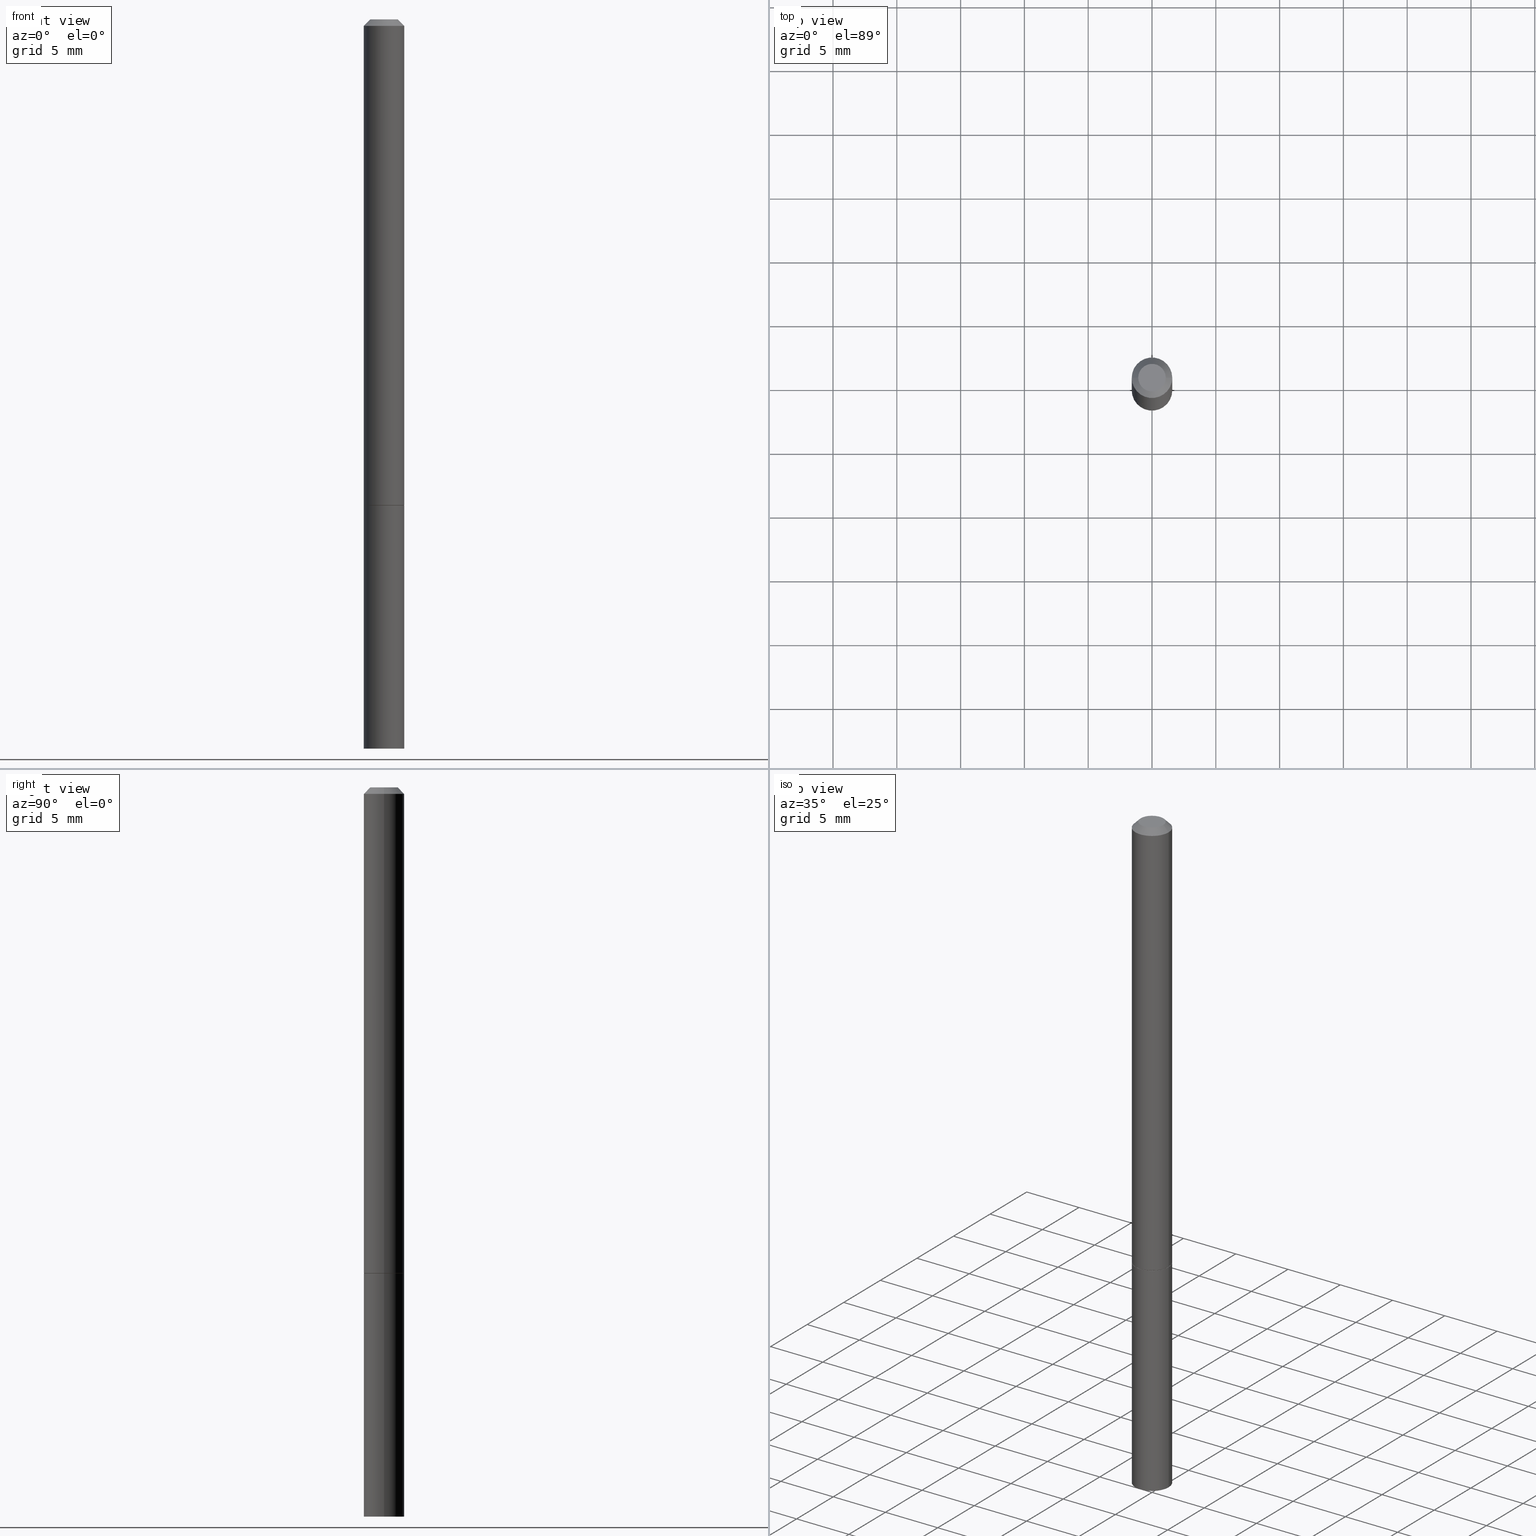
[diagram: canonical four-view strip — front | top / right | iso, engineering-drawing reading convention]
A machine part, canonical four-view strip (front | top / right | iso — engineering-drawing reading convention). The complete STEP part file that produces these views, byte-faithful:
ISO-10303-21;
HEADER;
FILE_DESCRIPTION (( 'STEP AP203' ),
    '1' );
FILE_NAME ('33141.STEP',
    '2023-03-21T20:41:01',
    ( '' ),
    ( '' ),
    'SwSTEP 2.0',
    'SolidWorks 2022',
    '' );
FILE_SCHEMA (( 'CONFIG_CONTROL_DESIGN' ));
ENDSEC;

DATA;
#1 = PLANE ( 'NONE',  #34 ) ;
#2 = AXIS2_PLACEMENT_3D ( 'NONE', #319, #113, #296 ) ;
#3 = DIRECTION ( 'NONE',  ( 2.438088387897960049E-29, -3.491481338843145188E-15, -1.000000000000000000 ) ) ;
#4 = AXIS2_PLACEMENT_3D ( 'NONE', #269, #3, #61 ) ;
#5 = FACE_OUTER_BOUND ( 'NONE', #291, .T. ) ;
#6 = CYLINDRICAL_SURFACE ( 'NONE', #165, 0.06250000000000001388 ) ;
#7 = DATE_AND_TIME ( #163, #388 ) ;
#8 = CARTESIAN_POINT ( 'NONE',  ( -0.06249999999999984734, 4.440892098500615315E-16, -3.074334431409308406E-30 ) ) ;
#9 = AXIS2_PLACEMENT_3D ( 'NONE', #195, #124, #311 ) ;
#10 = ADVANCED_FACE ( 'NONE', ( #292 ), #307, .F. ) ;
#11 = APPROVAL_STATUS ( 'not_yet_approved' ) ;
#12 = EDGE_CURVE ( 'NONE', #230, #87, #176, .T. ) ;
#13 = EDGE_LOOP ( 'NONE', ( #132, #105, #249 ) ) ;
#14 = APPROVAL_DATE_TIME ( #7, #338 ) ;
#15 = VERTEX_POINT ( 'NONE', #324 ) ;
#16 = AXIS2_PLACEMENT_3D ( 'NONE', #212, #240, #152 ) ;
#17 = COORDINATED_UNIVERSAL_TIME_OFFSET ( 5, 0, .BEHIND. ) ;
#18 = ORIENTED_EDGE ( 'NONE', *, *, #36, .F. ) ;
#19 = FACE_OUTER_BOUND ( 'NONE', #204, .T. ) ;
#20 = PRODUCT_DEFINITION ( 'UNKNOWN', '', #82, #211 ) ;
#21 = FACE_OUTER_BOUND ( 'NONE', #71, .T. ) ;
#22 = APPROVAL_STATUS ( 'not_yet_approved' ) ;
#23 = CARTESIAN_POINT ( 'NONE',  ( 3.668203209277706016E-29, -5.237222008264719754E-15, -1.500000000000000444 ) ) ;
#24 = ORIENTED_EDGE ( 'NONE', *, *, #273, .T. ) ;
#25 = EDGE_CURVE ( 'NONE', #377, #76, #119, .T. ) ;
#26 = ADVANCED_FACE ( 'NONE', ( #27 ), #28, .T. ) ;
#27 = FACE_OUTER_BOUND ( 'NONE', #192, .T. ) ;
#28 = CONICAL_SURFACE ( 'NONE', #245, 0.06249999999999974326, 0.7853981633974476129 ) ;
#29 = AXIS2_PLACEMENT_3D ( 'NONE', #384, #136, #145 ) ;
#30 = ORIENTED_EDGE ( 'NONE', *, *, #116, .F. ) ;
#31 = DIRECTION ( 'NONE',  ( 1.000000000000000000, -6.982962677686265922E-15, 4.870577812114112753E-29 ) ) ;
#32 = DIRECTION ( 'NONE',  ( -0.7071067811865469066, 2.468850131082251144E-15, -0.7071067811865479058 ) ) ;
#33 = CC_DESIGN_PERSON_AND_ORGANIZATION_ASSIGNMENT ( #248, #220, ( #82 ) ) ;
#34 = AXIS2_PLACEMENT_3D ( 'NONE', #328, #302, #363 ) ;
#35 = CARTESIAN_POINT ( 'NONE',  ( 3.665757740471520413E-29, -5.233730526925875958E-15, -1.499000000000000332 ) ) ;
#36 = EDGE_CURVE ( 'NONE', #85, #377, #234, .T. ) ;
#37 = FACE_OUTER_BOUND ( 'NONE', #278, .T. ) ;
#38 = COORDINATED_UNIVERSAL_TIME_OFFSET ( 5, 0, .BEHIND. ) ;
#39 = CLOSED_SHELL ( 'NONE', ( #366, #10, #370, #327, #202 ) ) ;
#40 = AXIS2_PLACEMENT_3D ( 'NONE', #303, #41, #159 ) ;
#41 = DIRECTION ( 'NONE',  ( -2.445468806185136597E-29, 3.491481338843145583E-15, 1.000000000000000000 ) ) ;
#42 = EDGE_LOOP ( 'NONE', ( #379, #254, #196 ) ) ;
#43 = CALENDAR_DATE ( 2023, 21, 3 ) ;
#44 = LINE ( 'NONE', #161, #149 ) ;
#45 = VERTEX_POINT ( 'NONE', #173 ) ;
#46 = DIRECTION ( 'NONE',  ( 0.000000000000000000, 0.000000000000000000, 1.000000000000000000 ) ) ;
#47 = ORIENTED_EDGE ( 'NONE', *, *, #242, .F. ) ;
#48 = AXIS2_PLACEMENT_3D ( 'NONE', #23, #389, #207 ) ;
#49 = ORIENTED_EDGE ( 'NONE', *, *, #25, .F. ) ;
#50 = CARTESIAN_POINT ( 'NONE',  ( -0.06249999999999974326, 3.666055405785266456E-16, -0.02000000000000007674 ) ) ;
#51 = MECHANICAL_CONTEXT ( 'NONE', #241, 'mechanical' ) ;
#52 = ORIENTED_EDGE ( 'NONE', *, *, #314, .T. ) ;
#53 = VECTOR ( 'NONE', #236, 39.37007874015748143 ) ;
#54 = DIRECTION ( 'NONE',  ( -0.7071067811864026886, 7.493145998869830357E-15, 0.7071067811866923458 ) ) ;
#55 = PLANE ( 'NONE',  #246 ) ;
#56 = DIRECTION ( 'NONE',  ( -2.445468806185136877E-29, 3.491481338843145188E-15, 1.000000000000000000 ) ) ;
#57 = AXIS2_PLACEMENT_3D ( 'NONE', #59, #120, #140 ) ;
#58 = CARTESIAN_POINT ( 'NONE',  ( 0.06249999999999992367, -8.284614137257799171E-15, -2.250000000000000444 ) ) ;
#59 = CARTESIAN_POINT ( 'NONE',  ( 3.668203209277706577E-29, -5.237222008264720543E-15, -1.500000000000000666 ) ) ;
#60 = CARTESIAN_POINT ( 'NONE',  ( -0.06150000000000001299, -4.794939771424035744E-15, -1.500000000000000666 ) ) ;
#61 = DIRECTION ( 'NONE',  ( -1.000000000000000000, 6.982962677686265922E-15, -4.876176775795935793E-29 ) ) ;
#62 = ADVANCED_FACE ( 'NONE', ( #21 ), #55, .F. ) ;
#63 = CARTESIAN_POINT ( 'NONE',  ( 0.06250000000000001388, -4.364351673553918173E-16, 3.047610484872460571E-30 ) ) ;
#64 = CIRCLE ( 'NONE', #180, 0.04249999999999975325 ) ;
#65 = DIRECTION ( 'NONE',  ( -2.445468806185136597E-29, 3.491481338843145583E-15, 1.000000000000000000 ) ) ;
#66 = APPROVAL_DATE_TIME ( #306, #263 ) ;
#67 = CARTESIAN_POINT ( 'NONE',  ( 3.668203209277706577E-29, -5.237222008264720543E-15, -1.500000000000000666 ) ) ;
#68 = COORDINATED_UNIVERSAL_TIME_OFFSET ( 5, 0, .BEHIND. ) ;
#69 = ORIENTED_EDGE ( 'NONE', *, *, #116, .T. ) ;
#70 = EDGE_CURVE ( 'NONE', #15, #235, #258, .T. ) ;
#71 = EDGE_LOOP ( 'NONE', ( #102, #222 ) ) ;
#72 = AXIS2_PLACEMENT_3D ( 'NONE', #35, #237, #208 ) ;
#73 = DIRECTION ( 'NONE',  ( -0.9986295347545742773, 6.790662755453662155E-15, -0.05233595624293820026 ) ) ;
#74 = ORIENTED_EDGE ( 'NONE', *, *, #86, .F. ) ;
#75 = DIRECTION ( 'NONE',  ( 1.000000000000000000, 0.000000000000000000, 0.000000000000000000 ) ) ;
#76 = VERTEX_POINT ( 'NONE', #50 ) ;
#77 = ADVANCED_FACE ( 'NONE', ( #326 ), #316, .T. ) ;
#78 = ORIENTED_EDGE ( 'NONE', *, *, #356, .F. ) ;
#79 = CC_DESIGN_DATE_AND_TIME_ASSIGNMENT ( #129, #304, ( #20 ) ) ;
#80 = AXIS2_PLACEMENT_3D ( 'NONE', #336, #96, #179 ) ;
#81 = PRODUCT ( '33141', '33141', '', ( #51 ) ) ;
#82 = PRODUCT_DEFINITION_FORMATION_WITH_SPECIFIED_SOURCE ( 'ANY', '', #81, .NOT_KNOWN. ) ;
#83 = DIRECTION ( 'NONE',  ( 2.445468806185136597E-29, -3.491481338843145583E-15, -1.000000000000000000 ) ) ;
#84 = MANIFOLD_SOLID_BREP ( 'Body-Move/Copy2[2]', #270 ) ;
#85 = VERTEX_POINT ( 'NONE', #354 ) ;
#86 = EDGE_CURVE ( 'NONE', #235, #15, #121, .T. ) ;
#87 = VERTEX_POINT ( 'NONE', #288 ) ;
#88 = VECTOR ( 'NONE', #91, 39.37007874015748854 ) ;
#89 = CIRCLE ( 'NONE', #177, 0.04249999999999975325 ) ;
#90 = LOCAL_TIME ( 16, 41, 1.000000000000000000, #17 ) ;
#91 = DIRECTION ( 'NONE',  ( 0.7071067811865469066, -7.319954787623252890E-15, -0.7071067811865479058 ) ) ;
#92 = CARTESIAN_POINT ( 'NONE',  ( -0.06150000000000001299, -4.800238225772258935E-15, -1.500000000000000666 ) ) ;
#93 = CARTESIAN_POINT ( 'NONE',  ( 0.000000000000000000, 0.000000000000000000, 0.000000000000000000 ) ) ;
#94 = AXIS2_PLACEMENT_3D ( 'NONE', #228, #133, #198 ) ;
#95 = DIRECTION ( 'NONE',  ( -2.445468806185136597E-29, 3.491481338843145583E-15, 1.000000000000000000 ) ) ;
#96 = DIRECTION ( 'NONE',  ( -2.445468806185136597E-29, 3.491481338843145583E-15, 1.000000000000000000 ) ) ;
#97 = CARTESIAN_POINT ( 'NONE',  ( -2.788544184640943410E-17, -7.844396713436020961E-15, -2.246724513794810640 ) ) ;
#98 = DIRECTION ( 'NONE',  ( 0.7071067811864026886, -2.468850131080739687E-15, 0.7071067811866923458 ) ) ;
#99 = VECTOR ( 'NONE', #56, 39.37007874015748143 ) ;
#100 = FACE_OUTER_BOUND ( 'NONE', #200, .T. ) ;
#101 = VECTOR ( 'NONE', #73, 39.37007874015748854 ) ;
#102 = ORIENTED_EDGE ( 'NONE', *, *, #261, .F. ) ;
#103 = ORIENTED_EDGE ( 'NONE', *, *, #298, .F. ) ;
#104 = DATE_TIME_ROLE ( 'classification_date' ) ;
#105 = ORIENTED_EDGE ( 'NONE', *, *, #148, .T. ) ;
#106 =( NAMED_UNIT ( * ) PLANE_ANGLE_UNIT ( ) SI_UNIT ( $, .RADIAN. ) );
#107 = ORIENTED_EDGE ( 'NONE', *, *, #365, .T. ) ;
#108 = AXIS2_PLACEMENT_3D ( 'NONE', #282, #231, #313 ) ;
#109 =( CONVERSION_BASED_UNIT ( 'INCH', #350 ) LENGTH_UNIT ( ) NAMED_UNIT ( #213 ) );
#110 = DIRECTION ( 'NONE',  ( 1.000000000000000000, -6.982962677686265922E-15, 4.870577812114112753E-29 ) ) ;
#111 = DIRECTION ( 'NONE',  ( 2.445468806185136597E-29, -3.491481338843145583E-15, -1.000000000000000000 ) ) ;
#112 = APPROVAL ( #22, 'UNSPECIFIED' ) ;
#113 = DIRECTION ( 'NONE',  ( -2.445468806185136597E-29, 3.491481338843145583E-15, 1.000000000000000000 ) ) ;
#114 =( GEOMETRIC_REPRESENTATION_CONTEXT ( 3 ) GLOBAL_UNCERTAINTY_ASSIGNED_CONTEXT ( ( #294 ) ) GLOBAL_UNIT_ASSIGNED_CONTEXT ( ( #109, #106, #203 ) ) REPRESENTATION_CONTEXT ( 'NONE', 'WORKASPACE' ) );
#115 = ORIENTED_EDGE ( 'NONE', *, *, #216, .F. ) ;
#116 = EDGE_CURVE ( 'NONE', #166, #377, #139, .T. ) ;
#117 = CARTESIAN_POINT ( 'NONE',  ( 0.06249999999999984734, -4.364351673553905847E-16, 3.047610484872452514E-30 ) ) ;
#118 = CARTESIAN_POINT ( 'NONE',  ( 0.06150000000000001299, -5.666674212942425410E-15, -1.500000000000000666 ) ) ;
#119 = CIRCLE ( 'NONE', #2, 0.06249999999999974326 ) ;
#120 = DIRECTION ( 'NONE',  ( -2.445468806185136597E-29, 3.491481338843145583E-15, 1.000000000000000000 ) ) ;
#121 = CIRCLE ( 'NONE', #308, 0.06250000000000001388 ) ;
#122 = EDGE_CURVE ( 'NONE', #85, #323, #64, .T. ) ;
#123 = DIRECTION ( 'NONE',  ( -2.445468806185136877E-29, 3.491481338843145188E-15, 1.000000000000000000 ) ) ;
#124 = DIRECTION ( 'NONE',  ( -2.445468806185136597E-29, 3.491481338843145583E-15, 1.000000000000000000 ) ) ;
#125 = PERSON_AND_ORGANIZATION ( #283, #209 ) ;
#126 = AXIS2_PLACEMENT_3D ( 'NONE', #359, #361, #210 ) ;
#127 = CC_DESIGN_SECURITY_CLASSIFICATION ( #191, ( #82 ) ) ;
#128 = VERTEX_POINT ( 'NONE', #232 ) ;
#129 = DATE_AND_TIME ( #43, #199 ) ;
#130 = AXIS2_PLACEMENT_3D ( 'NONE', #333, #65, #244 ) ;
#131 = ORIENTED_EDGE ( 'NONE', *, *, #353, .T. ) ;
#132 = ORIENTED_EDGE ( 'NONE', *, *, #345, .F. ) ;
#133 = DIRECTION ( 'NONE',  ( -2.445468806185136597E-29, 3.491481338843145583E-15, 1.000000000000000000 ) ) ;
#134 = EDGE_LOOP ( 'NONE', ( #318, #348, #115, #47 ) ) ;
#135 = CYLINDRICAL_SURFACE ( 'NONE', #94, 0.06249999999999984734 ) ;
#136 = DIRECTION ( 'NONE',  ( 2.445468806185136597E-29, -3.491481338843145583E-15, -1.000000000000000000 ) ) ;
#137 = VECTOR ( 'NONE', #274, 39.37007874015748854 ) ;
#138 = FACE_OUTER_BOUND ( 'NONE', #352, .T. ) ;
#139 = LINE ( 'NONE', #117, #99 ) ;
#140 = DIRECTION ( 'NONE',  ( 1.000000000000000000, -6.982962677686260400E-15, 0.000000000000000000 ) ) ;
#141 = ORIENTED_EDGE ( 'NONE', *, *, #216, .T. ) ;
#142 = DIRECTION ( 'NONE',  ( -2.438088387897960049E-29, 3.491481338843145188E-15, 1.000000000000000000 ) ) ;
#143 = CIRCLE ( 'NONE', #9, 0.06249999999999995143 ) ;
#144 = CC_DESIGN_PERSON_AND_ORGANIZATION_ASSIGNMENT ( #340, #337, ( #82 ) ) ;
#145 = DIRECTION ( 'NONE',  ( -1.000000000000000000, 6.982962677686265922E-15, 0.000000000000000000 ) ) ;
#146 = CARTESIAN_POINT ( 'NONE',  ( -0.06250000000000001388, -6.102438300480836091E-15, -1.500000000000000444 ) ) ;
#147 = DIRECTION ( 'NONE',  ( -2.445468806185136597E-29, 3.491481338843145583E-15, 1.000000000000000000 ) ) ;
#148 = EDGE_CURVE ( 'NONE', #128, #227, #178, .T. ) ;
#149 = VECTOR ( 'NONE', #279, 39.37007874015748143 ) ;
#150 = DIRECTION ( 'NONE',  ( 1.000000000000000000, -6.982962677686260400E-15, 0.000000000000000000 ) ) ;
#151 = ADVANCED_BREP_SHAPE_REPRESENTATION ( '33141', ( #217, #84, #387 ), #114 ) ;
#152 = DIRECTION ( 'NONE',  ( 1.000000000000000000, -6.982962677686261189E-15, 0.000000000000000000 ) ) ;
#153 = DIRECTION ( 'NONE',  ( -2.445468806185136597E-29, 3.491481338843145583E-15, 1.000000000000000000 ) ) ;
#154 = COORDINATED_UNIVERSAL_TIME_OFFSET ( 5, 0, .BEHIND. ) ;
#155 = APPLICATION_CONTEXT ( 'configuration controlled 3d designs of mechanical parts and assemblies' ) ;
#156 = PLANE ( 'NONE',  #4 ) ;
#157 = SECURITY_CLASSIFICATION_LEVEL ( 'unclassified' ) ;
#158 = ADVANCED_FACE ( 'NONE', ( #215 ), #297, .T. ) ;
#159 = DIRECTION ( 'NONE',  ( 1.000000000000000000, -6.982962677686261189E-15, 0.000000000000000000 ) ) ;
#160 = PERSON_AND_ORGANIZATION_ROLE ( 'classification_officer' ) ;
#161 = CARTESIAN_POINT ( 'NONE',  ( -0.06250000000000001388, 4.440892098500627148E-16, -3.074334431409317165E-30 ) ) ;
#162 = ORIENTED_EDGE ( 'NONE', *, *, #12, .F. ) ;
#163 = CALENDAR_DATE ( 2023, 21, 3 ) ;
#164 = FACE_OUTER_BOUND ( 'NONE', #42, .T. ) ;
#165 = AXIS2_PLACEMENT_3D ( 'NONE', #190, #153, #251 ) ;
#166 = VERTEX_POINT ( 'NONE', #329 ) ;
#167 = ORIENTED_EDGE ( 'NONE', *, *, #122, .T. ) ;
#168 = PERSON_AND_ORGANIZATION ( #283, #209 ) ;
#169 = DIRECTION ( 'NONE',  ( 1.000000000000000000, -6.982962677686261189E-15, 0.000000000000000000 ) ) ;
#170 = DATE_AND_TIME ( #381, #265 ) ;
#171 = DIRECTION ( 'NONE',  ( -1.000000000000000000, 6.982962677686265922E-15, 0.000000000000000000 ) ) ;
#172 = CIRCLE ( 'NONE', #16, 0.06250000000000001388 ) ;
#173 = CARTESIAN_POINT ( 'NONE',  ( 0.06150000000000001299, -5.666674212942425410E-15, -1.500000000000000666 ) ) ;
#174 = EDGE_LOOP ( 'NONE', ( #162, #52, #201, #312 ) ) ;
#175 = EDGE_CURVE ( 'NONE', #227, #262, #172, .T. ) ;
#176 = LINE ( 'NONE', #92, #289 ) ;
#177 = AXIS2_PLACEMENT_3D ( 'NONE', #331, #147, #31 ) ;
#178 = LINE ( 'NONE', #362, #137 ) ;
#179 = DIRECTION ( 'NONE',  ( 1.000000000000000000, -6.982962677686260400E-15, 0.000000000000000000 ) ) ;
#180 = AXIS2_PLACEMENT_3D ( 'NONE', #351, #382, #110 ) ;
#181 = APPROVAL_PERSON_ORGANIZATION ( #125, #263, #335 ) ;
#182 = SHAPE_DEFINITION_REPRESENTATION ( #339, #151 ) ;
#183 = CARTESIAN_POINT ( 'NONE',  ( -0.06249999999999992367, -7.419397845041688357E-15, -2.250000000000000444 ) ) ;
#184 = EDGE_CURVE ( 'NONE', #323, #85, #89, .T. ) ;
#185 = ADVANCED_FACE ( 'NONE', ( #5 ), #239, .T. ) ;
#186 = CALENDAR_DATE ( 2023, 21, 3 ) ;
#187 = PERSON_AND_ORGANIZATION_ROLE ( 'creator' ) ;
#188 = AXIS2_PLACEMENT_3D ( 'NONE', #233, #83, #206 ) ;
#189 = AXIS2_PLACEMENT_3D ( 'NONE', #197, #225, #373 ) ;
#190 = CARTESIAN_POINT ( 'NONE',  ( 0.000000000000000000, 0.000000000000000000, 0.000000000000000000 ) ) ;
#191 = SECURITY_CLASSIFICATION ( '', '', #157 ) ;
#192 = EDGE_LOOP ( 'NONE', ( #18, #321, #24, #107 ) ) ;
#193 = PERSON_AND_ORGANIZATION ( #283, #209 ) ;
#194 = EDGE_CURVE ( 'NONE', #227, #15, #214, .T. ) ;
#195 = CARTESIAN_POINT ( 'NONE',  ( 3.665757740471520413E-29, -5.233730526925875958E-15, -1.499000000000000332 ) ) ;
#196 = ORIENTED_EDGE ( 'NONE', *, *, #175, .F. ) ;
#197 = CARTESIAN_POINT ( 'NONE',  ( 0.000000000000000000, 0.000000000000000000, 0.000000000000000000 ) ) ;
#198 = DIRECTION ( 'NONE',  ( 1.000000000000000000, -6.982962677686266711E-15, 4.876176775795935793E-29 ) ) ;
#199 = LOCAL_TIME ( 16, 41, 1.000000000000000000, #38 ) ;
#200 = EDGE_LOOP ( 'NONE', ( #78, #205, #357, #74 ) ) ;
#201 = ORIENTED_EDGE ( 'NONE', *, *, #242, .T. ) ;
#202 = ADVANCED_FACE ( 'NONE', ( #358 ), #1, .F. ) ;
#203 =( NAMED_UNIT ( * ) SI_UNIT ( $, .STERADIAN. ) SOLID_ANGLE_UNIT ( ) );
#204 = EDGE_LOOP ( 'NONE', ( #226, #286, #390, #347 ) ) ;
#205 = ORIENTED_EDGE ( 'NONE', *, *, #330, .T. ) ;
#206 = DIRECTION ( 'NONE',  ( -1.000000000000000000, 6.982962677686266711E-15, 0.000000000000000000 ) ) ;
#207 = DIRECTION ( 'NONE',  ( 1.000000000000000000, -6.982962677686261189E-15, 0.000000000000000000 ) ) ;
#208 = DIRECTION ( 'NONE',  ( 1.000000000000000000, -6.982962677686268288E-15, 0.000000000000000000 ) ) ;
#209 = ORGANIZATION ( 'UNSPECIFIED', 'UNSPECIFIED', '' ) ;
#210 = DIRECTION ( 'NONE',  ( 1.000000000000000000, -6.982962677686260400E-15, 0.000000000000000000 ) ) ;
#211 = DESIGN_CONTEXT ( 'detailed design', #155, 'design' ) ;
#212 = CARTESIAN_POINT ( 'NONE',  ( 5.502304813916558464E-29, -7.855833012397078448E-15, -2.250000000000000444 ) ) ;
#213 = DIMENSIONAL_EXPONENTS ( 1.000000000000000000, 0.000000000000000000, 0.000000000000000000, 0.000000000000000000, 0.000000000000000000, 0.000000000000000000, 0.000000000000000000 ) ;
#214 = LINE ( 'NONE', #63, #238 ) ;
#215 = FACE_OUTER_BOUND ( 'NONE', #134, .T. ) ;
#216 = EDGE_CURVE ( 'NONE', #166, #87, #380, .T. ) ;
#217 = MANIFOLD_SOLID_BREP ( 'Body-Move/Copy2[1]', #39 ) ;
#218 = APPROVAL_STATUS ( 'not_yet_approved' ) ;
#219 = ORIENTED_EDGE ( 'NONE', *, *, #365, .F. ) ;
#220 = PERSON_AND_ORGANIZATION_ROLE ( 'design_supplier' ) ;
#221 = CONICAL_SURFACE ( 'NONE', #126, 0.06150000000000001299, 0.7853981633972434429 ) ;
#222 = ORIENTED_EDGE ( 'NONE', *, *, #314, .F. ) ;
#223 = CALENDAR_DATE ( 2023, 21, 3 ) ;
#224 = PRODUCT_RELATED_PRODUCT_CATEGORY ( 'detail', '', ( #81 ) ) ;
#225 = DIRECTION ( 'NONE',  ( -2.445468806185136597E-29, 3.491481338843145583E-15, 1.000000000000000000 ) ) ;
#226 = ORIENTED_EDGE ( 'NONE', *, *, #175, .T. ) ;
#227 = VERTEX_POINT ( 'NONE', #58 ) ;
#228 = CARTESIAN_POINT ( 'NONE',  ( 0.000000000000000000, 0.000000000000000000, 0.000000000000000000 ) ) ;
#229 = CONICAL_SURFACE ( 'NONE', #108, 751.2258538476485228, 1.518436449235072372 ) ;
#230 = VERTEX_POINT ( 'NONE', #60 ) ;
#231 = DIRECTION ( 'NONE',  ( 2.445468806185136597E-29, -3.491481338843145583E-15, -1.000000000000000000 ) ) ;
#232 = CARTESIAN_POINT ( 'NONE',  ( 5.474822414610211203E-29, -7.872282155282485375E-15, -2.246724513794810640 ) ) ;
#233 = CARTESIAN_POINT ( 'NONE',  ( 1.017725941706844260E-27, -1.453042919434811394E-13, -41.61680325395229119 ) ) ;
#234 = LINE ( 'NONE', #355, #88 ) ;
#235 = VERTEX_POINT ( 'NONE', #146 ) ;
#236 = DIRECTION ( 'NONE',  ( -2.445468806185136877E-29, 3.491481338843145188E-15, 1.000000000000000000 ) ) ;
#237 = DIRECTION ( 'NONE',  ( -2.445468806185136597E-29, 3.491481338843145583E-15, 1.000000000000000000 ) ) ;
#238 = VECTOR ( 'NONE', #123, 39.37007874015748143 ) ;
#239 = CYLINDRICAL_SURFACE ( 'NONE', #360, 0.06249999999999984734 ) ;
#240 = DIRECTION ( 'NONE',  ( -2.445468806185136597E-29, 3.491481338843145583E-15, 1.000000000000000000 ) ) ;
#241 = APPLICATION_CONTEXT ( 'configuration controlled 3d designs of mechanical parts and assemblies' ) ;
#242 = EDGE_CURVE ( 'NONE', #45, #166, #268, .T. ) ;
#243 = FACE_OUTER_BOUND ( 'NONE', #174, .T. ) ;
#244 = DIRECTION ( 'NONE',  ( 1.000000000000000000, -6.982962677686265922E-15, 0.000000000000000000 ) ) ;
#245 = AXIS2_PLACEMENT_3D ( 'NONE', #385, #111, #171 ) ;
#246 = AXIS2_PLACEMENT_3D ( 'NONE', #295, #142, #264 ) ;
#247 = APPROVAL_PERSON_ORGANIZATION ( #193, #338, #372 ) ;
#248 = PERSON_AND_ORGANIZATION ( #283, #209 ) ;
#249 = ORIENTED_EDGE ( 'NONE', *, *, #330, .F. ) ;
#250 = CC_DESIGN_APPROVAL ( #263, ( #191 ) ) ;
#251 = DIRECTION ( 'NONE',  ( 1.000000000000000000, -6.982962677686267499E-15, 4.876176775795935793E-29 ) ) ;
#252 = ORIENTED_EDGE ( 'NONE', *, *, #25, .T. ) ;
#253 = CARTESIAN_POINT ( 'NONE',  ( 0.06249999999999974326, -4.986107516375821473E-16, -0.02000000000000007674 ) ) ;
#254 = ORIENTED_EDGE ( 'NONE', *, *, #345, .T. ) ;
#255 = ADVANCED_FACE ( 'NONE', ( #243 ), #221, .T. ) ;
#256 =( LENGTH_UNIT ( ) NAMED_UNIT ( * ) SI_UNIT ( $, .METRE. ) );
#257 = COORDINATED_UNIVERSAL_TIME_OFFSET ( 5, 0, .BEHIND. ) ;
#258 = CIRCLE ( 'NONE', #48, 0.06250000000000001388 ) ;
#259 = DIRECTION ( 'NONE',  ( -2.445468806185136597E-29, 3.491481338843145583E-15, 1.000000000000000000 ) ) ;
#260 = ORIENTED_EDGE ( 'NONE', *, *, #184, .T. ) ;
#261 = EDGE_CURVE ( 'NONE', #45, #230, #301, .T. ) ;
#262 = VERTEX_POINT ( 'NONE', #183 ) ;
#263 = APPROVAL ( #218, 'UNSPECIFIED' ) ;
#264 = DIRECTION ( 'NONE',  ( 1.000000000000000000, -6.982962677686265922E-15, 4.876176775795935793E-29 ) ) ;
#265 = LOCAL_TIME ( 16, 41, 1.000000000000000000, #257 ) ;
#266 = CARTESIAN_POINT ( 'NONE',  ( 3.668203209277706016E-29, -5.237222008264719754E-15, -1.500000000000000444 ) ) ;
#267 = CC_DESIGN_PERSON_AND_ORGANIZATION_ASSIGNMENT ( #310, #160, ( #191 ) ) ;
#268 = LINE ( 'NONE', #118, #342 ) ;
#269 = CARTESIAN_POINT ( 'NONE',  ( 2.967759138016645800E-16, 0.04249999999999975325, -1.761332880864854825E-16 ) ) ;
#270 = CLOSED_SHELL ( 'NONE', ( #158, #386, #77, #26, #185, #255, #62, #284 ) ) ;
#271 = CC_DESIGN_APPROVAL ( #338, ( #82 ) ) ;
#272 = DIRECTION ( 'NONE',  ( -2.445468806185136597E-29, 3.491481338843145583E-15, 1.000000000000000000 ) ) ;
#273 = EDGE_CURVE ( 'NONE', #323, #76, #305, .T. ) ;
#274 = DIRECTION ( 'NONE',  ( 0.9986295347545742773, -7.033825938272001856E-15, -0.05233595624293820026 ) ) ;
#275 = LINE ( 'NONE', #8, #53 ) ;
#276 = AXIS2_PLACEMENT_3D ( 'NONE', #67, #95, #150 ) ;
#277 = LINE ( 'NONE', #97, #101 ) ;
#278 = EDGE_LOOP ( 'NONE', ( #260, #167 ) ) ;
#279 = DIRECTION ( 'NONE',  ( -2.445468806185136877E-29, 3.491481338843145188E-15, 1.000000000000000000 ) ) ;
#280 = EDGE_LOOP ( 'NONE', ( #343, #315, #252, #309 ) ) ;
#281 = CIRCLE ( 'NONE', #40, 0.06250000000000001388 ) ;
#282 = CARTESIAN_POINT ( 'NONE',  ( 1.017725941706844260E-27, -1.453042919434811394E-13, -41.61680325395229119 ) ) ;
#283 = PERSON ( 'UNSPECIFIED', 'UNSPECIFIED', 'UNSPECIFIED', ('UNSPECIFIED'), ('UNSPECIFIED'), ('UNSPECIFIED') ) ;
#284 = ADVANCED_FACE ( 'NONE', ( #37 ), #156, .F. ) ;
#285 = APPLICATION_PROTOCOL_DEFINITION ( 'international standard', 'config_control_design', 1994, #155 ) ;
#286 = ORIENTED_EDGE ( 'NONE', *, *, #356, .T. ) ;
#287 = PERSON_AND_ORGANIZATION_ROLE ( 'design_owner' ) ;
#288 = CARTESIAN_POINT ( 'NONE',  ( -0.06249999999999993755, -2.207690867001303462E-15, -1.499000000000000332 ) ) ;
#289 = VECTOR ( 'NONE', #54, 39.37007874015748143 ) ;
#290 = APPROVAL_DATE_TIME ( #170, #112 ) ;
#291 = EDGE_LOOP ( 'NONE', ( #103, #131, #69, #219 ) ) ;
#292 = FACE_OUTER_BOUND ( 'NONE', #13, .T. ) ;
#293 = CC_DESIGN_DATE_AND_TIME_ASSIGNMENT ( #344, #104, ( #191 ) ) ;
#294 = UNCERTAINTY_MEASURE_WITH_UNIT (LENGTH_MEASURE( 1.000000000000000082E-05 ), #109, 'distance_accuracy_value', 'NONE');
#295 = CARTESIAN_POINT ( 'NONE',  ( 3.668203209277706016E-29, -5.237222008264719754E-15, -1.500000000000000444 ) ) ;
#296 = DIRECTION ( 'NONE',  ( 1.000000000000000000, -6.982962677686265922E-15, 0.000000000000000000 ) ) ;
#297 = CONICAL_SURFACE ( 'NONE', #276, 0.06150000000000001299, 0.7853981633972434429 ) ;
#298 = EDGE_CURVE ( 'NONE', #87, #76, #275, .T. ) ;
#299 = DIRECTION ( 'NONE',  ( 1.000000000000000000, -6.982962677686266711E-15, 4.876176775795935793E-29 ) ) ;
#300 = CARTESIAN_POINT ( 'NONE',  ( -0.06249999999999974326, 3.666055405785266456E-16, -0.02000000000000007674 ) ) ;
#301 = CIRCLE ( 'NONE', #80, 0.06150000000000001299 ) ;
#302 = DIRECTION ( 'NONE',  ( 2.438088387897960049E-29, -3.491481338843145188E-15, -1.000000000000000000 ) ) ;
#303 = CARTESIAN_POINT ( 'NONE',  ( 5.502304813916558464E-29, -7.855833012397078448E-15, -2.250000000000000444 ) ) ;
#304 = DATE_TIME_ROLE ( 'creation_date' ) ;
#305 = LINE ( 'NONE', #300, #349 ) ;
#306 = DATE_AND_TIME ( #186, #371 ) ;
#307 = CONICAL_SURFACE ( 'NONE', #188, 751.2258538476485228, 1.518436449235072372 ) ;
#308 = AXIS2_PLACEMENT_3D ( 'NONE', #266, #259, #169 ) ;
#309 = ORIENTED_EDGE ( 'NONE', *, *, #273, .F. ) ;
#310 = PERSON_AND_ORGANIZATION ( #283, #209 ) ;
#311 = DIRECTION ( 'NONE',  ( 1.000000000000000000, -6.982962677686268288E-15, 0.000000000000000000 ) ) ;
#312 = ORIENTED_EDGE ( 'NONE', *, *, #353, .F. ) ;
#313 = DIRECTION ( 'NONE',  ( -1.000000000000000000, 6.982962677686266711E-15, 0.000000000000000000 ) ) ;
#314 = EDGE_CURVE ( 'NONE', #230, #45, #322, .T. ) ;
#315 = ORIENTED_EDGE ( 'NONE', *, *, #36, .T. ) ;
#316 = CONICAL_SURFACE ( 'NONE', #29, 0.06249999999999974326, 0.7853981633974476129 ) ;
#317 = CYLINDRICAL_SURFACE ( 'NONE', #189, 0.06250000000000001388 ) ;
#318 = ORIENTED_EDGE ( 'NONE', *, *, #261, .T. ) ;
#319 = CARTESIAN_POINT ( 'NONE',  ( 4.890937612370292426E-31, -6.982962677686317493E-17, -0.02000000000000007674 ) ) ;
#320 = APPROVAL_ROLE ( '' ) ;
#321 = ORIENTED_EDGE ( 'NONE', *, *, #184, .F. ) ;
#322 = CIRCLE ( 'NONE', #57, 0.06150000000000001299 ) ;
#323 = VERTEX_POINT ( 'NONE', #325 ) ;
#324 = CARTESIAN_POINT ( 'NONE',  ( 0.06250000000000001388, -5.673657175620110635E-15, -1.500000000000000444 ) ) ;
#325 = CARTESIAN_POINT ( 'NONE',  ( -0.04249999999999975325, 3.316907271900955388E-16, -5.549066237130754373E-17 ) ) ;
#326 = FACE_OUTER_BOUND ( 'NONE', #280, .T. ) ;
#327 = ADVANCED_FACE ( 'NONE', ( #100 ), #6, .T. ) ;
#328 = CARTESIAN_POINT ( 'NONE',  ( 4.364351673554284500E-16, 0.06249999999999478195, -1.500000000000000666 ) ) ;
#329 = CARTESIAN_POINT ( 'NONE',  ( 0.06249999999999995143, -5.670165694281267628E-15, -1.499000000000000332 ) ) ;
#330 = EDGE_CURVE ( 'NONE', #262, #227, #281, .T. ) ;
#331 = CARTESIAN_POINT ( 'NONE',  ( 1.357006838635785746E-45, -1.937446121494581442E-31, -5.549066237130534971E-17 ) ) ;
#332 = CC_DESIGN_PERSON_AND_ORGANIZATION_ASSIGNMENT ( #168, #287, ( #81 ) ) ;
#333 = CARTESIAN_POINT ( 'NONE',  ( 4.890937612370292426E-31, -6.982962677686317493E-17, -0.02000000000000007674 ) ) ;
#334 = APPROVAL_PERSON_ORGANIZATION ( #378, #112, #320 ) ;
#335 = APPROVAL_ROLE ( '' ) ;
#336 = CARTESIAN_POINT ( 'NONE',  ( 3.668203209277706577E-29, -5.237222008264720543E-15, -1.500000000000000666 ) ) ;
#337 = PERSON_AND_ORGANIZATION_ROLE ( 'creator' ) ;
#338 = APPROVAL ( #11, 'UNSPECIFIED' ) ;
#339 = PRODUCT_DEFINITION_SHAPE ( 'NONE', 'NONE',  #20 ) ;
#340 = PERSON_AND_ORGANIZATION ( #283, #209 ) ;
#341 = ORIENTED_EDGE ( 'NONE', *, *, #70, .T. ) ;
#342 = VECTOR ( 'NONE', #98, 39.37007874015748143 ) ;
#343 = ORIENTED_EDGE ( 'NONE', *, *, #122, .F. ) ;
#344 = DATE_AND_TIME ( #223, #90 ) ;
#345 = EDGE_CURVE ( 'NONE', #128, #262, #277, .T. ) ;
#346 = APPLICATION_PROTOCOL_DEFINITION ( 'international standard', 'config_control_design', 1994, #241 ) ;
#347 = ORIENTED_EDGE ( 'NONE', *, *, #194, .F. ) ;
#348 = ORIENTED_EDGE ( 'NONE', *, *, #12, .T. ) ;
#349 = VECTOR ( 'NONE', #32, 39.37007874015748854 ) ;
#350 = LENGTH_MEASURE_WITH_UNIT ( LENGTH_MEASURE( 0.02539999999999999897 ), #256 );
#351 = CARTESIAN_POINT ( 'NONE',  ( 1.357006838635785746E-45, -1.937446121494581442E-31, -5.549066237130534971E-17 ) ) ;
#352 = EDGE_LOOP ( 'NONE', ( #141, #367, #49, #30 ) ) ;
#353 = EDGE_CURVE ( 'NONE', #87, #166, #143, .T. ) ;
#354 = CARTESIAN_POINT ( 'NONE',  ( 0.04249999999999975325, -3.950909582714353640E-16, -5.549066237130292766E-17 ) ) ;
#355 = CARTESIAN_POINT ( 'NONE',  ( 0.06249999999999974326, -4.986107516375821473E-16, -0.02000000000000007674 ) ) ;
#356 = EDGE_CURVE ( 'NONE', #262, #235, #44, .T. ) ;
#357 = ORIENTED_EDGE ( 'NONE', *, *, #194, .T. ) ;
#358 = FACE_OUTER_BOUND ( 'NONE', #368, .T. ) ;
#359 = CARTESIAN_POINT ( 'NONE',  ( 3.668203209277706577E-29, -5.237222008264720543E-15, -1.500000000000000666 ) ) ;
#360 = AXIS2_PLACEMENT_3D ( 'NONE', #93, #272, #299 ) ;
#361 = DIRECTION ( 'NONE',  ( -2.445468806185136597E-29, 3.491481338843145583E-15, 1.000000000000000000 ) ) ;
#362 = CARTESIAN_POINT ( 'NONE',  ( 2.788544184651931996E-17, -7.844396713436020961E-15, -2.246724513794810640 ) ) ;
#363 = DIRECTION ( 'NONE',  ( -1.000000000000000000, 6.982962677686265922E-15, -4.876176775795935793E-29 ) ) ;
#364 = CC_DESIGN_APPROVAL ( #112, ( #20 ) ) ;
#365 = EDGE_CURVE ( 'NONE', #76, #377, #369, .T. ) ;
#366 = ADVANCED_FACE ( 'NONE', ( #19 ), #317, .T. ) ;
#367 = ORIENTED_EDGE ( 'NONE', *, *, #298, .T. ) ;
#368 = EDGE_LOOP ( 'NONE', ( #341, #374 ) ) ;
#369 = CIRCLE ( 'NONE', #130, 0.06249999999999974326 ) ;
#370 = ADVANCED_FACE ( 'NONE', ( #164 ), #229, .F. ) ;
#371 = LOCAL_TIME ( 16, 41, 1.000000000000000000, #68 ) ;
#372 = APPROVAL_ROLE ( '' ) ;
#373 = DIRECTION ( 'NONE',  ( 1.000000000000000000, -6.982962677686267499E-15, 4.876176775795935793E-29 ) ) ;
#374 = ORIENTED_EDGE ( 'NONE', *, *, #86, .T. ) ;
#375 = CC_DESIGN_PERSON_AND_ORGANIZATION_ASSIGNMENT ( #383, #187, ( #20 ) ) ;
#376 = CARTESIAN_POINT ( 'NONE',  ( 0.000000000000000000, 0.000000000000000000, 0.000000000000000000 ) ) ;
#377 = VERTEX_POINT ( 'NONE', #253 ) ;
#378 = PERSON_AND_ORGANIZATION ( #283, #209 ) ;
#379 = ORIENTED_EDGE ( 'NONE', *, *, #148, .F. ) ;
#380 = CIRCLE ( 'NONE', #72, 0.06249999999999995143 ) ;
#381 = CALENDAR_DATE ( 2023, 21, 3 ) ;
#382 = DIRECTION ( 'NONE',  ( -2.445468806185136597E-29, 3.491481338843145583E-15, 1.000000000000000000 ) ) ;
#383 = PERSON_AND_ORGANIZATION ( #283, #209 ) ;
#384 = CARTESIAN_POINT ( 'NONE',  ( 4.890937612370292426E-31, -6.982962677686317493E-17, -0.02000000000000007674 ) ) ;
#385 = CARTESIAN_POINT ( 'NONE',  ( 4.890937612370292426E-31, -6.982962677686317493E-17, -0.02000000000000007674 ) ) ;
#386 = ADVANCED_FACE ( 'NONE', ( #138 ), #135, .T. ) ;
#387 = AXIS2_PLACEMENT_3D ( 'NONE', #376, #46, #75 ) ;
#388 = LOCAL_TIME ( 16, 41, 1.000000000000000000, #154 ) ;
#389 = DIRECTION ( 'NONE',  ( -2.445468806185136597E-29, 3.491481338843145583E-15, 1.000000000000000000 ) ) ;
#390 = ORIENTED_EDGE ( 'NONE', *, *, #70, .F. ) ;
ENDSEC;
END-ISO-10303-21;
